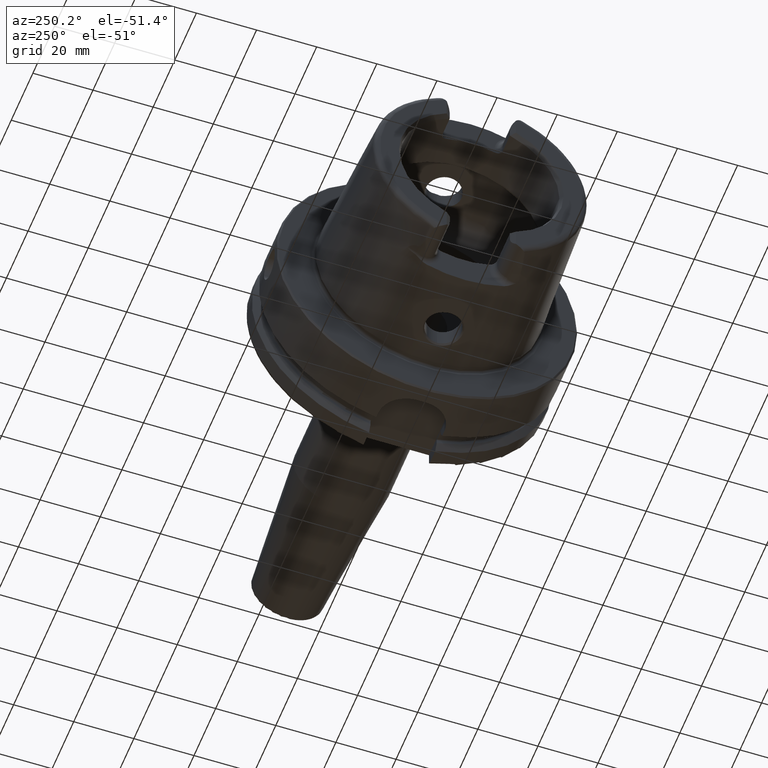
[diagram: clean part render]
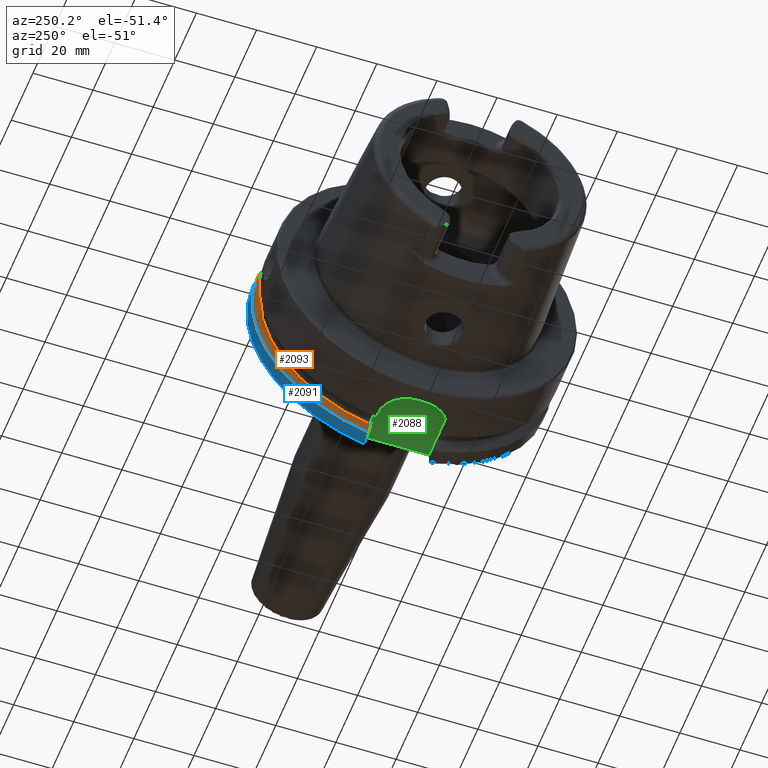
[diagram: same view with three faces highlighted in distinct colors, each labeled with its STEP entity id]
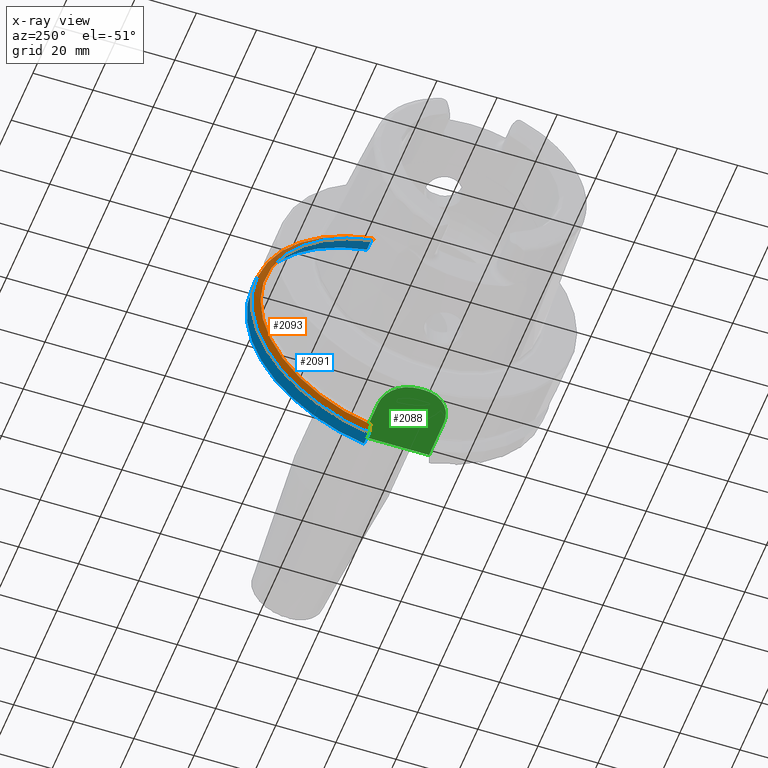
[diagram: x-ray of the same camera — body ghosted, the three highlighted faces saturated]
A machine part, auxiliary view with three faces highlighted in distinct colors.
The next image is the same camera in x-ray (body ghosted, the three faces saturated) — at least one of them is partly hidden behind the body in this view.
Their STEP definitions:

[orange] entity #2093 — the highlighted conical surface has half-angle 60 deg.
#24=(
BOUNDED_CURVE()
B_SPLINE_CURVE(2,(#4282,#4283,#4284),.UNSPECIFIED.,.F.,.F.)
B_SPLINE_CURVE_WITH_KNOTS((3,3),(0.,0.28292349080556),.UNSPECIFIED.)
CURVE()
GEOMETRIC_REPRESENTATION_ITEM()
RATIONAL_B_SPLINE_CURVE((1.,1.0003193410929,1.))
REPRESENTATION_ITEM('')
);
#27=(
BOUNDED_CURVE()
B_SPLINE_CURVE(2,(#4373,#4374,#4375),.UNSPECIFIED.,.F.,.F.)
B_SPLINE_CURVE_WITH_KNOTS((3,3),(0.,0.281931851964124),.UNSPECIFIED.)
CURVE()
GEOMETRIC_REPRESENTATION_ITEM()
RATIONAL_B_SPLINE_CURVE((1.,1.00031639802473,1.))
REPRESENTATION_ITEM('')
);
#279=FACE_OUTER_BOUND('',#412,.T.);
#412=EDGE_LOOP('',(#1738,#1739,#1740,#1741));
#769=CIRCLE('',#2326,50.);
#771=CIRCLE('',#2330,47.5975952641917);
#983=VERTEX_POINT('',#4279);
#984=VERTEX_POINT('',#4281);
#997=VERTEX_POINT('',#4365);
#998=VERTEX_POINT('',#4371);
#1247=EDGE_CURVE('',#984,#983,#24,.T.);
#1268=EDGE_CURVE('',#984,#997,#769,.T.);
#1271=EDGE_CURVE('',#983,#998,#771,.T.);
#1272=EDGE_CURVE('',#998,#997,#27,.T.);
#1738=ORIENTED_EDGE('',*,*,#1247,.T.);
#1739=ORIENTED_EDGE('',*,*,#1271,.T.);
#1740=ORIENTED_EDGE('',*,*,#1272,.T.);
#1741=ORIENTED_EDGE('',*,*,#1268,.F.);
#2018=CONICAL_SURFACE('',#2329,48.7987976320958,1.0471975511966);
#2093=ADVANCED_FACE('',(#279),#2018,.T.);
#2326=AXIS2_PLACEMENT_3D('',#4366,#2831,#2832);
#2329=AXIS2_PLACEMENT_3D('',#4370,#2838,#2839);
#2330=AXIS2_PLACEMENT_3D('',#4372,#2840,#2841);
#2831=DIRECTION('center_axis',(1.,0.,0.));
#2832=DIRECTION('ref_axis',(0.,0.,-1.));
#2838=DIRECTION('center_axis',(1.,0.,0.));
#2839=DIRECTION('ref_axis',(0.,1.,0.));
#2840=DIRECTION('center_axis',(1.,0.,0.));
#2841=DIRECTION('ref_axis',(0.,0.,-1.));
#4279=CARTESIAN_POINT('',(21.875,11.,-46.3090819919138));
#4281=CARTESIAN_POINT('',(23.2620290209214,11.,-48.7749935930288));
#4282=CARTESIAN_POINT('Ctrl Pts',(23.2620290209214,11.,-48.7749935930288));
#4283=CARTESIAN_POINT('Ctrl Pts',(22.5505288964237,11.,-47.5116880808802));
#4284=CARTESIAN_POINT('Ctrl Pts',(21.875,11.,-46.3090819919138));
#4365=CARTESIAN_POINT('',(23.2620290209214,10.,48.9897948556636));
#4366=CARTESIAN_POINT('Origin',(23.2620290209214,0.,0.));
#4370=CARTESIAN_POINT('Origin',(22.5685145104607,0.,0.));
#4371=CARTESIAN_POINT('',(21.875,10.,46.5352670018535));
#4372=CARTESIAN_POINT('Origin',(21.875,0.,0.));
#4373=CARTESIAN_POINT('Ctrl Pts',(21.875,10.,46.5352670018535));
#4374=CARTESIAN_POINT('Ctrl Pts',(22.5506945724782,10.,47.7323213251992));
#4375=CARTESIAN_POINT('Ctrl Pts',(23.2620290209214,10.,48.9897948556636));

[blue] entity #2091 — the highlighted cylindrical surface (partial cylindrical patch) has radius 50 mm, axis along (1, 0, 0).
#196=CYLINDRICAL_SURFACE('',#2325,50.);
#277=FACE_OUTER_BOUND('',#410,.T.);
#410=EDGE_LOOP('',(#1730,#1731,#1732,#1733));
#544=LINE('',#4285,#652);
#554=LINE('',#4367,#662);
#652=VECTOR('',#2797,10.);
#662=VECTOR('',#2833,10.);
#767=CIRCLE('',#2322,50.);
#769=CIRCLE('',#2326,50.);
#976=VERTEX_POINT('',#4235);
#984=VERTEX_POINT('',#4281);
#996=VERTEX_POINT('',#4350);
#997=VERTEX_POINT('',#4365);
#1248=EDGE_CURVE('',#976,#984,#544,.T.);
#1265=EDGE_CURVE('',#976,#996,#767,.T.);
#1268=EDGE_CURVE('',#984,#997,#769,.T.);
#1269=EDGE_CURVE('',#997,#996,#554,.T.);
#1730=ORIENTED_EDGE('',*,*,#1248,.T.);
#1731=ORIENTED_EDGE('',*,*,#1268,.T.);
#1732=ORIENTED_EDGE('',*,*,#1269,.T.);
#1733=ORIENTED_EDGE('',*,*,#1265,.F.);
#2091=ADVANCED_FACE('',(#277),#196,.T.);
#2322=AXIS2_PLACEMENT_3D('',#4351,#2823,#2824);
#2325=AXIS2_PLACEMENT_3D('',#4364,#2829,#2830);
#2326=AXIS2_PLACEMENT_3D('',#4366,#2831,#2832);
#2797=DIRECTION('',(-1.,0.,0.));
#2823=DIRECTION('center_axis',(1.,0.,0.));
#2824=DIRECTION('ref_axis',(0.,0.,-1.));
#2829=DIRECTION('center_axis',(1.,0.,0.));
#2830=DIRECTION('ref_axis',(0.,1.,0.));
#2831=DIRECTION('center_axis',(1.,0.,0.));
#2832=DIRECTION('ref_axis',(0.,0.,-1.));
#2833=DIRECTION('',(1.,0.,0.));
#4235=CARTESIAN_POINT('',(28.,11.,-48.7749935930288));
#4281=CARTESIAN_POINT('',(23.2620290209214,11.,-48.7749935930288));
#4285=CARTESIAN_POINT('',(25.6310145104607,11.,-48.7749935930288));
#4350=CARTESIAN_POINT('',(28.,10.,48.9897948556636));
#4351=CARTESIAN_POINT('Origin',(28.,0.,0.));
#4364=CARTESIAN_POINT('Origin',(25.6310145104607,0.,0.));
#4365=CARTESIAN_POINT('',(23.2620290209214,10.,48.9897948556636));
#4366=CARTESIAN_POINT('Origin',(23.2620290209214,0.,0.));
#4367=CARTESIAN_POINT('',(25.6310145104607,10.,48.9897948556636));

[green] entity #2088 — the highlighted planar face has unit normal (0, 0, 1).
#120=PLANE('',#2320);
#274=FACE_OUTER_BOUND('',#407,.T.);
#407=EDGE_LOOP('',(#1716,#1717,#1718,#1719,#1720,#1721));
#482=LINE('',#3162,#590);
#539=LINE('',#4247,#647);
#551=LINE('',#4341,#659);
#553=LINE('',#4347,#661);
#590=VECTOR('',#2527,10.);
#647=VECTOR('',#2792,10.);
#659=VECTOR('',#2810,10.);
#661=VECTOR('',#2818,10.);
#765=CIRCLE('',#2315,10.);
#766=CIRCLE('',#2318,10.);
#850=VERTEX_POINT('',#3159);
#851=VERTEX_POINT('',#3161);
#977=VERTEX_POINT('',#4246);
#985=VERTEX_POINT('',#4287);
#986=VERTEX_POINT('',#4289);
#995=VERTEX_POINT('',#4343);
#1070=EDGE_CURVE('',#850,#851,#482,.T.);
#1239=EDGE_CURVE('',#851,#977,#539,.T.);
#1250=EDGE_CURVE('',#985,#986,#765,.T.);
#1261=EDGE_CURVE('',#986,#850,#551,.T.);
#1262=EDGE_CURVE('',#977,#995,#766,.T.);
#1264=EDGE_CURVE('',#995,#985,#553,.T.);
#1716=ORIENTED_EDGE('',*,*,#1264,.F.);
#1717=ORIENTED_EDGE('',*,*,#1262,.F.);
#1718=ORIENTED_EDGE('',*,*,#1239,.F.);
#1719=ORIENTED_EDGE('',*,*,#1070,.F.);
#1720=ORIENTED_EDGE('',*,*,#1261,.F.);
#1721=ORIENTED_EDGE('',*,*,#1250,.F.);
#2088=ADVANCED_FACE('',(#274),#120,.F.);
#2315=AXIS2_PLACEMENT_3D('',#4290,#2801,#2802);
#2318=AXIS2_PLACEMENT_3D('',#4344,#2813,#2814);
#2320=AXIS2_PLACEMENT_3D('',#4348,#2819,#2820);
#2527=DIRECTION('',(0.,1.,0.));
#2792=DIRECTION('',(-1.,-1.58603289232165E-16,0.));
#2801=DIRECTION('center_axis',(0.,0.,1.));
#2802=DIRECTION('ref_axis',(-1.,-2.4980018054066E-16,0.));
#2810=DIRECTION('',(1.,1.58603289232165E-16,0.));
#2813=DIRECTION('center_axis',(0.,0.,1.));
#2814=DIRECTION('ref_axis',(-2.22044604925031E-16,1.,0.));
#2818=DIRECTION('',(0.,-1.,0.));
#2819=DIRECTION('center_axis',(0.,0.,1.));
#2820=DIRECTION('ref_axis',(1.,0.,0.));
#3159=CARTESIAN_POINT('',(29.,-11.,-44.));
#3161=CARTESIAN_POINT('',(29.,11.,-44.));
#3162=CARTESIAN_POINT('',(29.,-5.55111512312578E-16,-44.));
#4246=CARTESIAN_POINT('',(15.,11.,-44.));
#4247=CARTESIAN_POINT('',(29.,11.,-44.));
#4287=CARTESIAN_POINT('',(4.99999999999999,-1.00000000000001,-44.));
#4289=CARTESIAN_POINT('',(15.,-11.,-44.));
#4290=CARTESIAN_POINT('Origin',(15.,-1.,-44.));
#4341=CARTESIAN_POINT('',(15.,-11.,-44.));
#4343=CARTESIAN_POINT('',(4.99999999999999,0.999999999999997,-44.));
#4344=CARTESIAN_POINT('Origin',(15.,1.,-44.));
#4347=CARTESIAN_POINT('',(4.99999999999999,0.999999999999997,-44.));
#4348=CARTESIAN_POINT('Origin',(17.,-1.11022302462516E-15,-44.));